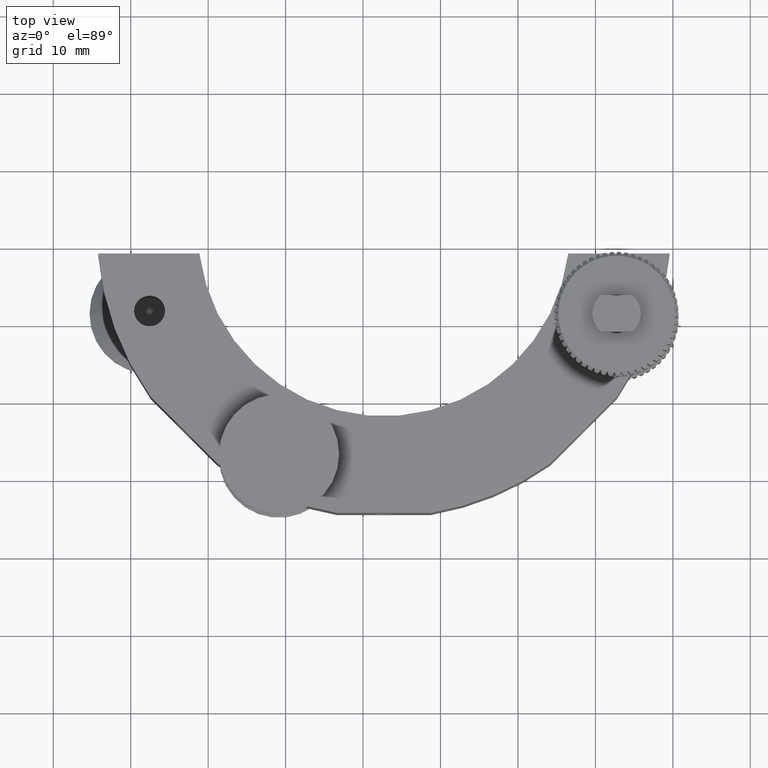
[diagram: clean part render]
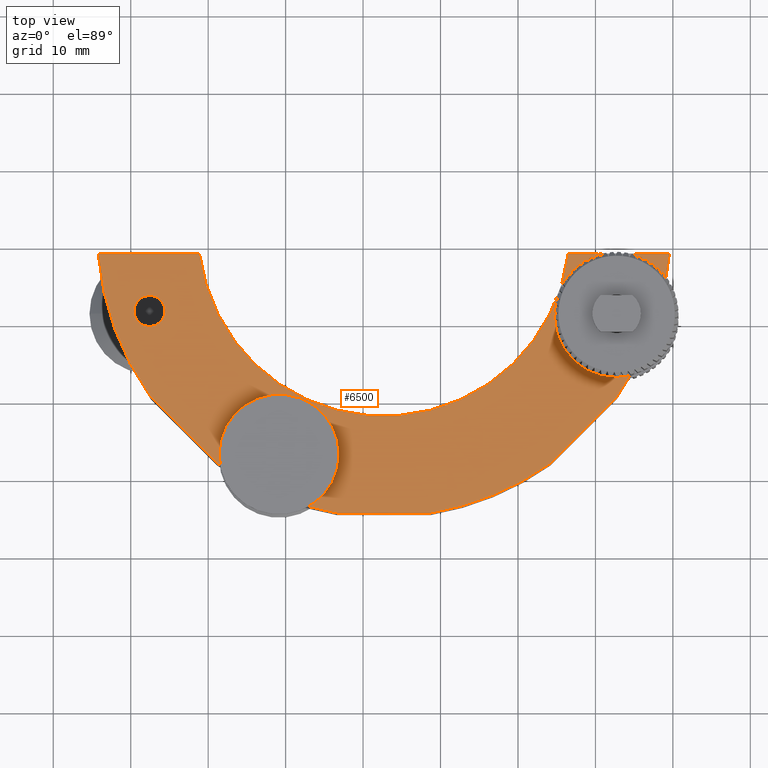
[diagram: same view with one face highlighted and labeled with its STEP entity id]
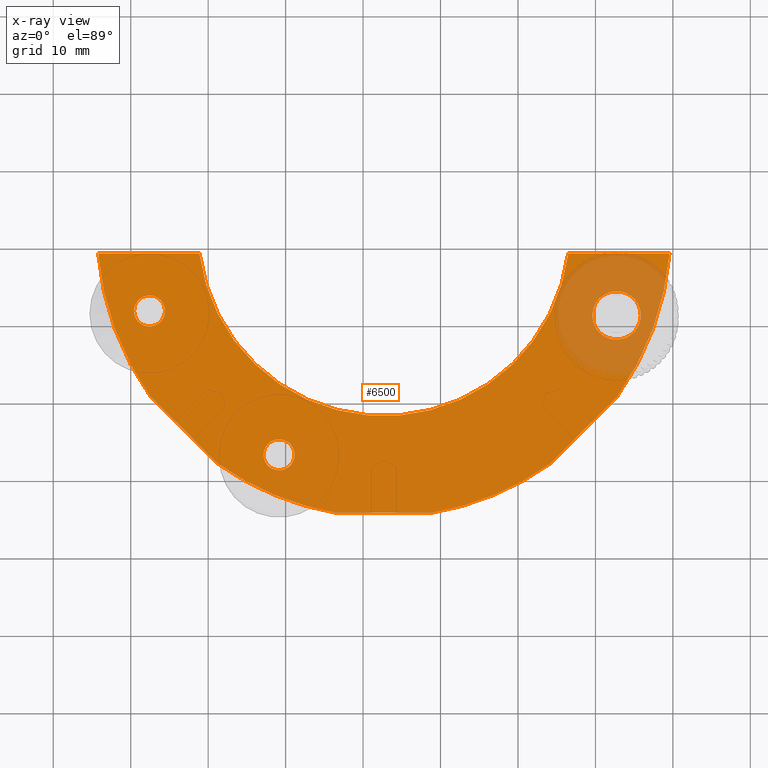
[diagram: x-ray of the same camera — body ghosted, the highlighted face saturated]
A machine part, top view. The second image highlights one B-rep face of the part: STEP entity #6500.
The next image is the same camera in x-ray: the body ghosted, the highlighted face saturated — about 13% of this face is hidden behind the body in this view.
In plain terms, the highlighted planar face has unit normal (0, 0, 1).
Its self-contained STEP definition (entity closure, byte-faithful):
#9 = CIRCLE ( 'NONE', #17246, 24.00000000000000400 ) ;
#434 = DIRECTION ( 'NONE',  ( 0.0000000000000000000, 0.0000000000000000000, 1.000000000000000000 ) ) ;
#643 = ORIENTED_EDGE ( 'NONE', *, *, #6612, .F. ) ;
#813 = CARTESIAN_POINT ( 'NONE',  ( -3.382564541901944600, -34.60194059008181700, 8.000000000000000000 ) ) ;
#857 = VERTEX_POINT ( 'NONE', #4458 ) ;
#1229 = CARTESIAN_POINT ( 'NONE',  ( 2.679613284590009600, 1.898059409918034800, 8.000000000000000000 ) ) ;
#1247 = DIRECTION ( 'NONE',  ( 0.0000000000000000000, 0.0000000000000000000, 1.000000000000000000 ) ) ;
#1250 = ORIENTED_EDGE ( 'NONE', *, *, #6461, .T. ) ;
#1427 = VERTEX_POINT ( 'NONE', #9678 ) ;
#1431 = CARTESIAN_POINT ( 'NONE',  ( 8.741791111081948200, -34.60194059008180300, 8.000000000000000000 ) ) ;
#1478 = VERTEX_POINT ( 'NONE', #16678 ) ;
#1577 = DIRECTION ( 'NONE',  ( 0.0000000000000000000, 0.0000000000000000000, 1.000000000000000000 ) ) ;
#2191 = EDGE_LOOP ( 'NONE', ( #643, #15567 ) ) ;
#2292 = CARTESIAN_POINT ( 'NONE',  ( -34.19856454458153600, -1.101940590081945700, 8.000000000000000000 ) ) ;
#2453 = CIRCLE ( 'NONE', #6944, 37.00000000000005000 ) ;
#2593 = VERTEX_POINT ( 'NONE', #7585 ) ;
#3148 = VERTEX_POINT ( 'NONE', #17255 ) ;
#3326 = DIRECTION ( 'NONE',  ( 1.000000000000000000, 0.0000000000000000000, 0.0000000000000000000 ) ) ;
#3399 = ORIENTED_EDGE ( 'NONE', *, *, #9206, .T. ) ;
#3467 = CIRCLE ( 'NONE', #13670, 1.999999999999998200 ) ;
#3999 = EDGE_CURVE ( 'NONE', #857, #17131, #2453, .T. ) ;
#4052 = CARTESIAN_POINT ( 'NONE',  ( 2.679613284590009600, 1.898059409918034800, 8.000000000000000000 ) ) ;
#4156 = AXIS2_PLACEMENT_3D ( 'NONE', #10132, #4586, #13022 ) ;
#4185 = AXIS2_PLACEMENT_3D ( 'NONE', #15490, #12688, #9765 ) ;
#4254 = EDGE_CURVE ( 'NONE', #1427, #13668, #5058, .T. ) ;
#4430 = DIRECTION ( 'NONE',  ( -0.0000000000000000000, -0.0000000000000000000, -1.000000000000000000 ) ) ;
#4446 = CARTESIAN_POINT ( 'NONE',  ( 39.55779111376160300, -1.101940590081937000, 8.000000000000000000 ) ) ;
#4458 = CARTESIAN_POINT ( 'NONE',  ( 32.77561784776956700, -19.62473105352044900, 8.000000000000000000 ) ) ;
#4583 = CIRCLE ( 'NONE', #8552, 36.99999999999997900 ) ;
#4586 = DIRECTION ( 'NONE',  ( 0.0000000000000000000, 0.0000000000000000000, 1.000000000000000000 ) ) ;
#4809 = VECTOR ( 'NONE', #15957, 1000.000000000000000 ) ;
#4908 = DIRECTION ( 'NONE',  ( -1.000000000000000000, -1.858667947559369100E-015, -0.0000000000000000000 ) ) ;
#5058 = CIRCLE ( 'NONE', #4156, 2.000000000000000000 ) ;
#5456 = CARTESIAN_POINT ( 'NONE',  ( 26.49137508417133100, -1.101940590081930300, 8.000000000000000000 ) ) ;
#5472 = CIRCLE ( 'NONE', #8661, 2.000000000000000000 ) ;
#5473 = DIRECTION ( 'NONE',  ( 0.7071067811865522400, 0.7071067811865428000, 0.0000000000000000000 ) ) ;
#5742 = LINE ( 'NONE', #13796, #15738 ) ;
#5849 = ORIENTED_EDGE ( 'NONE', *, *, #17963, .T. ) ;
#6461 = EDGE_CURVE ( 'NONE', #17131, #11058, #10417, .T. ) ;
#6500 = ADVANCED_FACE ( 'NONE', ( #14154, #17382, #15220, #17818 ), #13795, .T. ) ;
#6572 = AXIS2_PLACEMENT_3D ( 'NONE', #11758, #13116, #3326 ) ;
#6612 = EDGE_CURVE ( 'NONE', #1478, #2593, #11709, .T. ) ;
#6633 = EDGE_CURVE ( 'NONE', #8757, #8651, #16493, .T. ) ;
#6799 = DIRECTION ( 'NONE',  ( 0.0000000000000000000, 0.0000000000000000000, 1.000000000000000000 ) ) ;
#6842 = DIRECTION ( 'NONE',  ( 1.000000000000000000, 0.0000000000000000000, 0.0000000000000000000 ) ) ;
#6944 = AXIS2_PLACEMENT_3D ( 'NONE', #16608, #9379, #10894 ) ;
#7041 = CARTESIAN_POINT ( 'NONE',  ( 26.49137508417133100, -1.101940590081929900, 8.000000000000000000 ) ) ;
#7269 = DIRECTION ( 'NONE',  ( 1.000000000000000000, 0.0000000000000000000, 0.0000000000000000000 ) ) ;
#7510 = CARTESIAN_POINT ( 'NONE',  ( -27.57698113458547300, -8.520121532718349000, 8.000000000000000000 ) ) ;
#7532 = VERTEX_POINT ( 'NONE', #12747 ) ;
#7575 = VECTOR ( 'NONE', #9054, 1000.000000000000000 ) ;
#7585 = CARTESIAN_POINT ( 'NONE',  ( 35.85457168722359700, -9.101940590081937900, 8.000000000000000000 ) ) ;
#7704 = EDGE_CURVE ( 'NONE', #8671, #3148, #15004, .T. ) ;
#7814 = CIRCLE ( 'NONE', #6572, 3.124999999999996000 ) ;
#7956 = CARTESIAN_POINT ( 'NONE',  ( -34.19856454458155100, -1.101940590081929900, 8.000000000000000000 ) ) ;
#8130 = CARTESIAN_POINT ( 'NONE',  ( -29.57698113458547300, -8.520121532718349000, 8.000000000000000000 ) ) ;
#8220 = ORIENTED_EDGE ( 'NONE', *, *, #13472, .T. ) ;
#8552 = AXIS2_PLACEMENT_3D ( 'NONE', #1229, #15089, #12155 ) ;
#8598 = AXIS2_PLACEMENT_3D ( 'NONE', #11344, #1577, #15434 ) ;
#8651 = VERTEX_POINT ( 'NONE', #8130 ) ;
#8661 = AXIS2_PLACEMENT_3D ( 'NONE', #17882, #1247, #11201 ) ;
#8671 = VERTEX_POINT ( 'NONE', #7956 ) ;
#8727 = AXIS2_PLACEMENT_3D ( 'NONE', #4052, #13965, #6842 ) ;
#8757 = VERTEX_POINT ( 'NONE', #10735 ) ;
#8793 = DIRECTION ( 'NONE',  ( 0.0000000000000000000, 0.0000000000000000000, 1.000000000000000000 ) ) ;
#8957 = VERTEX_POINT ( 'NONE', #12878 ) ;
#9054 = DIRECTION ( 'NONE',  ( 1.000000000000000000, -5.723103233283588400E-016, 0.0000000000000000000 ) ) ;
#9061 = EDGE_CURVE ( 'NONE', #8651, #8757, #3467, .T. ) ;
#9173 = CARTESIAN_POINT ( 'NONE',  ( -27.41639127858922000, -19.62473105352083600, 8.000000000000000000 ) ) ;
#9206 = EDGE_CURVE ( 'NONE', #10301, #8671, #12609, .T. ) ;
#9277 = CARTESIAN_POINT ( 'NONE',  ( -18.84317717884897900, -28.19794515326110600, 8.000000000000000000 ) ) ;
#9379 = DIRECTION ( 'NONE',  ( 0.0000000000000000000, 0.0000000000000000000, 1.000000000000000000 ) ) ;
#9519 = ORIENTED_EDGE ( 'NONE', *, *, #6633, .F. ) ;
#9678 = CARTESIAN_POINT ( 'NONE',  ( -12.84417109111222500, -27.10378977525479600, 8.000000000000000000 ) ) ;
#9765 = DIRECTION ( 'NONE',  ( 1.000000000000000000, 0.0000000000000000000, 0.0000000000000000000 ) ) ;
#9995 = EDGE_CURVE ( 'NONE', #8957, #16528, #11496, .T. ) ;
#10058 = CIRCLE ( 'NONE', #4185, 37.00000000000000000 ) ;
#10116 = EDGE_LOOP ( 'NONE', ( #15912, #12962 ) ) ;
#10132 = CARTESIAN_POINT ( 'NONE',  ( -10.84417109111222500, -27.10378977525479600, 8.000000000000000000 ) ) ;
#10301 = VERTEX_POINT ( 'NONE', #15314 ) ;
#10417 = LINE ( 'NONE', #7041, #11942 ) ;
#10735 = CARTESIAN_POINT ( 'NONE',  ( -25.57698113458547700, -8.520121532718349000, 8.000000000000000000 ) ) ;
#10751 = EDGE_LOOP ( 'NONE', ( #17887, #9519 ) ) ;
#10894 = DIRECTION ( 'NONE',  ( 1.000000000000000000, 0.0000000000000000000, 0.0000000000000000000 ) ) ;
#10989 = EDGE_LOOP ( 'NONE', ( #13285, #11467, #17433, #8220, #12176, #1250, #12816, #3399, #14087, #5849 ) ) ;
#11058 = VERTEX_POINT ( 'NONE', #5456 ) ;
#11201 = DIRECTION ( 'NONE',  ( 1.000000000000000000, 0.0000000000000000000, 0.0000000000000000000 ) ) ;
#11344 = CARTESIAN_POINT ( 'NONE',  ( -27.57698113458547300, -8.520121532718349000, 8.000000000000000000 ) ) ;
#11399 = DIRECTION ( 'NONE',  ( 1.000000000000000000, 0.0000000000000000000, 0.0000000000000000000 ) ) ;
#11467 = ORIENTED_EDGE ( 'NONE', *, *, #9995, .T. ) ;
#11496 = LINE ( 'NONE', #813, #7575 ) ;
#11709 = CIRCLE ( 'NONE', #12325, 3.124999999999996000 ) ;
#11758 = CARTESIAN_POINT ( 'NONE',  ( 32.72957168722360400, -9.101940590081937900, 8.000000000000000000 ) ) ;
#11824 = DIRECTION ( 'NONE',  ( 1.000000000000000000, 0.0000000000000000000, 0.0000000000000000000 ) ) ;
#11942 = VECTOR ( 'NONE', #16762, 1000.000000000000000 ) ;
#12145 = VERTEX_POINT ( 'NONE', #9277 ) ;
#12155 = DIRECTION ( 'NONE',  ( 1.000000000000000000, 0.0000000000000000000, 0.0000000000000000000 ) ) ;
#12176 = ORIENTED_EDGE ( 'NONE', *, *, #3999, .T. ) ;
#12325 = AXIS2_PLACEMENT_3D ( 'NONE', #17045, #434, #11399 ) ;
#12609 = LINE ( 'NONE', #2292, #13045 ) ;
#12688 = DIRECTION ( 'NONE',  ( 0.0000000000000000000, 0.0000000000000000000, 1.000000000000000000 ) ) ;
#12747 = CARTESIAN_POINT ( 'NONE',  ( 24.20240374802847700, -28.19794515326142900, 8.000000000000000000 ) ) ;
#12816 = ORIENTED_EDGE ( 'NONE', *, *, #16093, .T. ) ;
#12878 = CARTESIAN_POINT ( 'NONE',  ( -3.382564541901944600, -34.60194059008181700, 8.000000000000000000 ) ) ;
#12962 = ORIENTED_EDGE ( 'NONE', *, *, #17472, .F. ) ;
#13022 = DIRECTION ( 'NONE',  ( 1.000000000000000000, 0.0000000000000000000, 0.0000000000000000000 ) ) ;
#13045 = VECTOR ( 'NONE', #4908, 1000.000000000000000 ) ;
#13116 = DIRECTION ( 'NONE',  ( 0.0000000000000000000, 0.0000000000000000000, 1.000000000000000000 ) ) ;
#13285 = ORIENTED_EDGE ( 'NONE', *, *, #13574, .T. ) ;
#13472 = EDGE_CURVE ( 'NONE', #7532, #857, #5742, .T. ) ;
#13574 = EDGE_CURVE ( 'NONE', #12145, #8957, #10058, .T. ) ;
#13668 = VERTEX_POINT ( 'NONE', #17165 ) ;
#13670 = AXIS2_PLACEMENT_3D ( 'NONE', #7510, #8793, #11824 ) ;
#13742 = DIRECTION ( 'NONE',  ( 1.000000000000000000, 0.0000000000000000000, -0.0000000000000000000 ) ) ;
#13795 = PLANE ( 'NONE',  #13858 ) ;
#13796 = CARTESIAN_POINT ( 'NONE',  ( 24.20240374802847700, -28.19794515326142900, 8.000000000000000000 ) ) ;
#13858 = AXIS2_PLACEMENT_3D ( 'NONE', #16702, #6799, #13742 ) ;
#13965 = DIRECTION ( 'NONE',  ( 0.0000000000000000000, 0.0000000000000000000, 1.000000000000000000 ) ) ;
#14087 = ORIENTED_EDGE ( 'NONE', *, *, #7704, .T. ) ;
#14154 = FACE_BOUND ( 'NONE', #10751, .T. ) ;
#15004 = CIRCLE ( 'NONE', #8727, 37.00000000000000700 ) ;
#15089 = DIRECTION ( 'NONE',  ( 0.0000000000000000000, 0.0000000000000000000, 1.000000000000000000 ) ) ;
#15220 = FACE_BOUND ( 'NONE', #10116, .T. ) ;
#15314 = CARTESIAN_POINT ( 'NONE',  ( -21.13214851499131400, -1.101940590081921200, 8.000000000000000000 ) ) ;
#15434 = DIRECTION ( 'NONE',  ( 1.000000000000000000, 0.0000000000000000000, 0.0000000000000000000 ) ) ;
#15490 = CARTESIAN_POINT ( 'NONE',  ( 2.679613284590009600, 1.898059409918034800, 8.000000000000000000 ) ) ;
#15567 = ORIENTED_EDGE ( 'NONE', *, *, #16173, .F. ) ;
#15671 = CARTESIAN_POINT ( 'NONE',  ( 2.679613284590009600, 1.898059409918034800, 8.000000000000000000 ) ) ;
#15738 = VECTOR ( 'NONE', #5473, 1000.000000000000000 ) ;
#15912 = ORIENTED_EDGE ( 'NONE', *, *, #4254, .F. ) ;
#15957 = DIRECTION ( 'NONE',  ( 0.7071067811865462400, -0.7071067811865489100, 0.0000000000000000000 ) ) ;
#16093 = EDGE_CURVE ( 'NONE', #11058, #10301, #9, .T. ) ;
#16173 = EDGE_CURVE ( 'NONE', #2593, #1478, #7814, .T. ) ;
#16323 = LINE ( 'NONE', #9173, #4809 ) ;
#16493 = CIRCLE ( 'NONE', #8598, 1.999999999999998200 ) ;
#16528 = VERTEX_POINT ( 'NONE', #1431 ) ;
#16608 = CARTESIAN_POINT ( 'NONE',  ( 2.679613284590009600, 1.898059409918034800, 8.000000000000000000 ) ) ;
#16678 = CARTESIAN_POINT ( 'NONE',  ( 29.60457168722360400, -9.101940590081937900, 8.000000000000000000 ) ) ;
#16702 = CARTESIAN_POINT ( 'NONE',  ( 2.679613284590009600, 1.898059409918034800, 8.000000000000000000 ) ) ;
#16762 = DIRECTION ( 'NONE',  ( -1.000000000000000000, 5.310479850169606000E-016, -0.0000000000000000000 ) ) ;
#17045 = CARTESIAN_POINT ( 'NONE',  ( 32.72957168722360400, -9.101940590081937900, 8.000000000000000000 ) ) ;
#17131 = VERTEX_POINT ( 'NONE', #4446 ) ;
#17165 = CARTESIAN_POINT ( 'NONE',  ( -8.844171091112224700, -27.10378977525479600, 8.000000000000000000 ) ) ;
#17246 = AXIS2_PLACEMENT_3D ( 'NONE', #15671, #4430, #7269 ) ;
#17255 = CARTESIAN_POINT ( 'NONE',  ( -27.41639127858922000, -19.62473105352083600, 8.000000000000000000 ) ) ;
#17382 = FACE_OUTER_BOUND ( 'NONE', #10989, .T. ) ;
#17433 = ORIENTED_EDGE ( 'NONE', *, *, #17892, .T. ) ;
#17472 = EDGE_CURVE ( 'NONE', #13668, #1427, #5472, .T. ) ;
#17818 = FACE_BOUND ( 'NONE', #2191, .T. ) ;
#17882 = CARTESIAN_POINT ( 'NONE',  ( -10.84417109111222500, -27.10378977525479600, 8.000000000000000000 ) ) ;
#17887 = ORIENTED_EDGE ( 'NONE', *, *, #9061, .F. ) ;
#17892 = EDGE_CURVE ( 'NONE', #16528, #7532, #4583, .T. ) ;
#17963 = EDGE_CURVE ( 'NONE', #3148, #12145, #16323, .T. ) ;